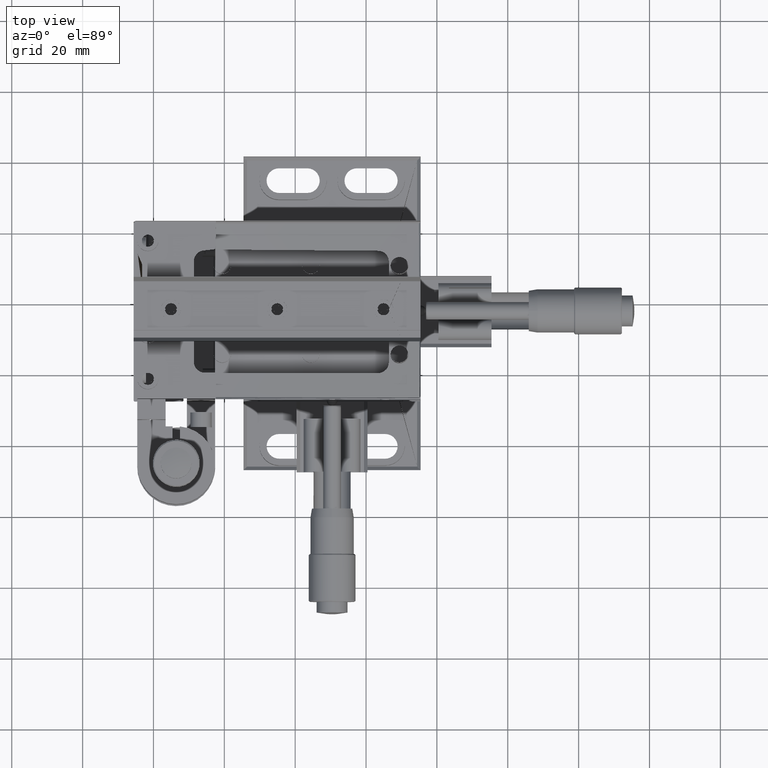
[diagram: clean part render]
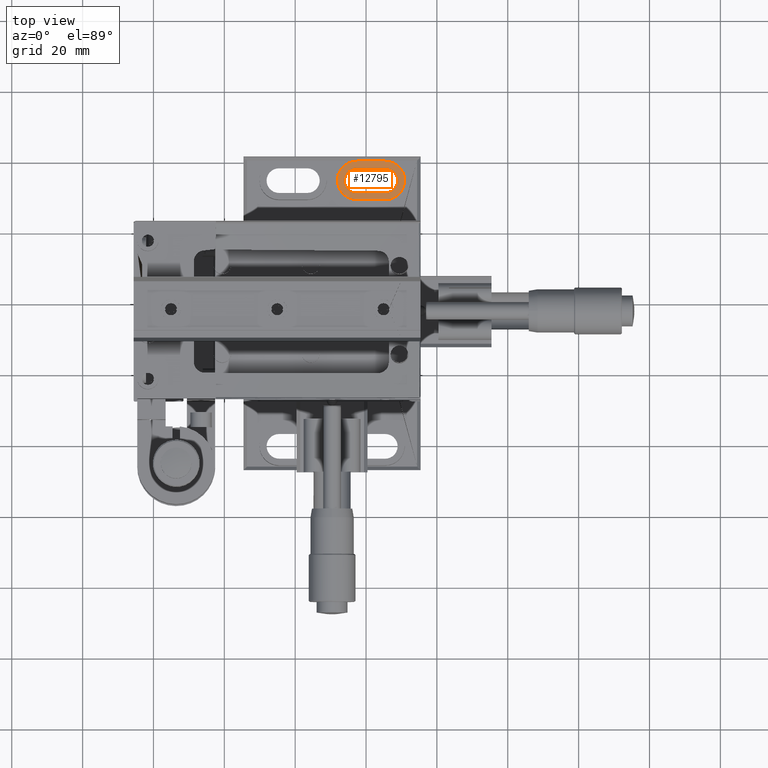
[diagram: same view with one face highlighted and labeled with its STEP entity id]
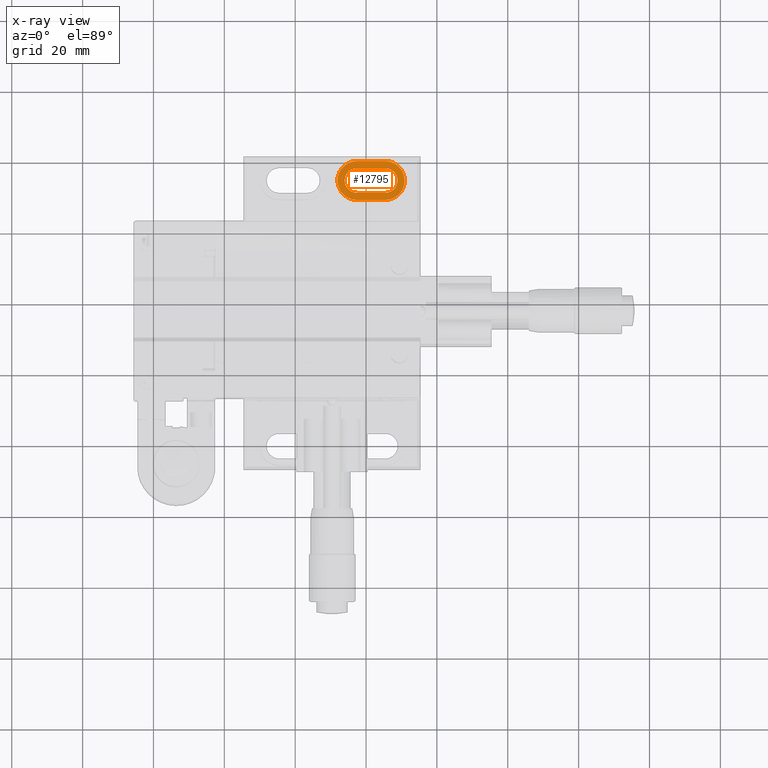
[diagram: x-ray of the same camera — body ghosted, the highlighted face saturated]
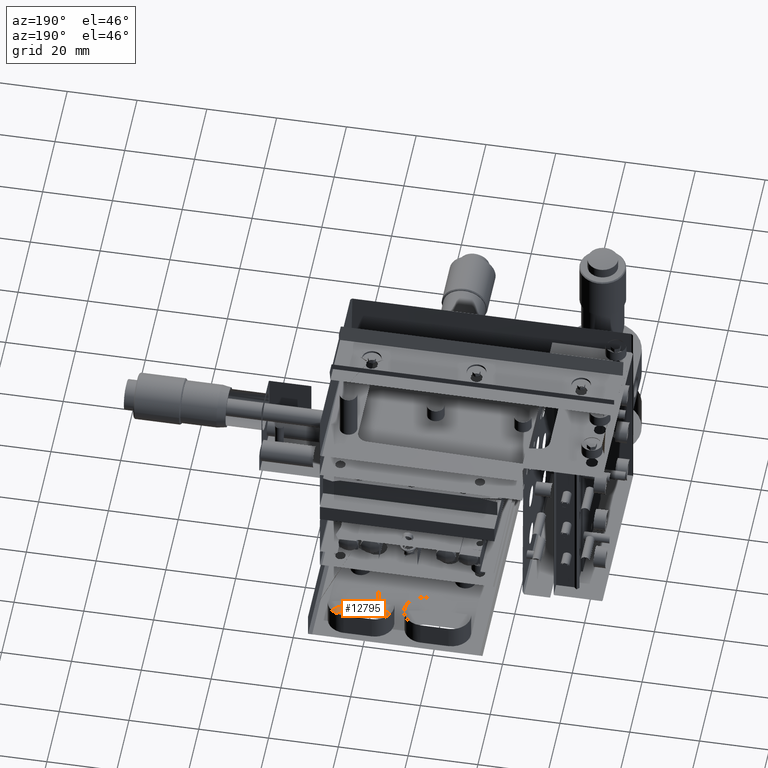
[diagram: same view with one face highlighted and labeled with its STEP entity id]
A machine part, top view. The second image highlights one B-rep face of the part: STEP entity #12795.
The next image is the same camera in x-ray: the body ghosted, the highlighted face saturated — about 0% of this face is hidden behind the body in this view.
A second angle (auxiliary view) of the same face is appended — the face is thin or edge-on in the first view.
In plain terms, the highlighted face is a freeform B-spline surface patch.
Its self-contained STEP definition (entity closure, byte-faithful):
#394 =( BOUNDED_CURVE ( )  B_SPLINE_CURVE ( 3, ( #31378, #25449, #39255, #29090 ),
 .UNSPECIFIED., .F., .F. ) 
 B_SPLINE_CURVE_WITH_KNOTS ( ( 4, 4 ),
 ( 0.000000000000000000, 1.000000000000000000 ),
 .UNSPECIFIED. ) 
 CURVE ( )  GEOMETRIC_REPRESENTATION_ITEM ( )  RATIONAL_B_SPLINE_CURVE ( ( 1.000000000000000000, 0.8047378541243648264, 0.8047378541243648264, 1.000000000000000000 ) ) 
 REPRESENTATION_ITEM ( '' )  );
#632 = EDGE_CURVE ( 'NONE', #13397, #16909, #33474, .T. ) ;
#874 = ORIENTED_EDGE ( 'NONE', *, *, #18282, .F. ) ;
#1044 = CARTESIAN_POINT ( 'NONE',  ( 25.41923232115950171, 40.50071742813409514, -20.42187213818440128 ) ) ;
#1271 = CARTESIAN_POINT ( 'NONE',  ( 15.27251899089824327, 32.19767391394924516, -20.42187213818439773 ) ) ;
#1931 = CARTESIAN_POINT ( 'NONE',  ( 17.41923232115949816, 31.50071742813410225, -20.42187213818440128 ) ) ;
#1973 = CARTESIAN_POINT ( 'NONE',  ( 28.91923232115950171, 35.00071742813409514, -20.42187213818440128 ) ) ;
#2419 = CARTESIAN_POINT ( 'NONE',  ( 28.83042510908934020, 34.09010724093332811, -20.42187213818440128 ) ) ;
#2458 = VERTEX_POINT ( 'NONE', #28920 ) ;
#3616 = EDGE_LOOP ( 'NONE', ( #18785, #43237, #42667, #13821, #5152 ) ) ;
#4663 = CARTESIAN_POINT ( 'NONE',  ( 14.36324950012286372, 33.23255452209824057, -20.42187213818439773 ) ) ;
#5102 = CARTESIAN_POINT ( 'NONE',  ( 16.50862213395950917, 31.58952464020426376, -20.42187213818440128 ) ) ;
#5152 = ORIENTED_EDGE ( 'NONE', *, *, #11940, .T. ) ;
#5705 = B_SPLINE_CURVE_WITH_KNOTS ( 'NONE', 1,
 ( #18524, #29198 ),
 .UNSPECIFIED., .F., .F.,
 ( 2, 2 ),
 ( 0.000000000000000000, 1.000000000000000000 ),
 .UNSPECIFIED. ) ;
#6486 = CARTESIAN_POINT ( 'NONE',  ( 27.56593627527434265, 32.19768329007392538, -20.42187213818440128 ) ) ;
#6932 = CARTESIAN_POINT ( 'NONE',  ( 26.32985344162930375, 31.58954352155122436, -20.42187213818439773 ) ) ;
#6945 = CARTESIAN_POINT ( 'NONE',  ( 30.91923232115949816, 35.00071742813409514, -20.42187213818440128 ) ) ;
#7350 = CARTESIAN_POINT ( 'NONE',  ( 25.41923232115950171, 29.50071742813409870, -20.42187213818440128 ) ) ;
#7787 =( BOUNDED_CURVE ( )  B_SPLINE_CURVE ( 3, ( #6945, #24619, #17349, #1044 ),
 .UNSPECIFIED., .F., .F. ) 
 B_SPLINE_CURVE_WITH_KNOTS ( ( 4, 4 ),
 ( 0.000000000000000000, 1.000000000000000000 ),
 .UNSPECIFIED. ) 
 CURVE ( )  GEOMETRIC_REPRESENTATION_ITEM ( )  RATIONAL_B_SPLINE_CURVE ( ( 1.000000000000000000, 0.8047378541243648264, 0.8047378541243648264, 1.000000000000000000 ) ) 
 REPRESENTATION_ITEM ( '' )  );
#7826 = CARTESIAN_POINT ( 'NONE',  ( 13.91923895110203979, 35.46481295194035255, -20.42187213818440128 ) ) ;
#8750 = CARTESIAN_POINT ( 'NONE',  ( 28.47521514226754391, 36.76888033407342249, -20.42187213818439773 ) ) ;
#8775 = B_SPLINE_CURVE_WITH_KNOTS ( 'NONE', 1,
 ( #13540, #14647 ),
 .UNSPECIFIED., .F., .F.,
 ( 2, 2 ),
 ( 0.000000000000000000, 1.000000000000000000 ),
 .UNSPECIFIED. ) ;
#9361 = EDGE_CURVE ( 'NONE', #39175, #26492, #7787, .T. ) ;
#9595 = CARTESIAN_POINT ( 'NONE',  ( 25.41923232115950171, 31.50071742813410225, -20.42187213818440128 ) ) ;
#10088 = CARTESIAN_POINT ( 'NONE',  ( 28.22227583535051565, 32.85400409788842779, -20.42187213818439773 ) ) ;
#11150 = CARTESIAN_POINT ( 'NONE',  ( 17.41923232115949816, 29.50071742813409870, -20.42187213818440128 ) ) ;
#11310 = CARTESIAN_POINT ( 'NONE',  ( 27.18740616051608683, 38.05668136778326982, -20.42187213818440128 ) ) ;
#11597 = CARTESIAN_POINT ( 'NONE',  ( 15.98170007804238324, 40.35843628470400546, -20.42187213818440128 ) ) ;
#11940 = EDGE_CURVE ( 'NONE', #42676, #13397, #8775, .T. ) ;
#12341 = CARTESIAN_POINT ( 'NONE',  ( 16.95508613838545031, 31.50071742813410935, -20.42187213818440128 ) ) ;
#12407 = CARTESIAN_POINT ( 'NONE',  ( 25.41923232115950171, 40.50071742813409514, -20.42187213818440128 ) ) ;
#12795 = ADVANCED_FACE ( 'NONE', ( #23135, #43985 ), #42407, .T. ) ;
#13014 = B_SPLINE_CURVE_WITH_KNOTS ( 'NONE', 3,
 ( #41837, #17806, #31655, #14393, #38869, #35264, #18024, #28486, #7826, #21663, #18248, #4663, #32309, #1271, #39760, #5102, #12341, #1931 ),
 .UNSPECIFIED., .F., .F.,
 ( 4, 2, 2, 2, 2, 2, 2, 2, 4 ),
 ( 0.000000000000000000, 0.1250000000000000000, 0.2500000000000000000, 0.3750000000000000000, 0.5000000000000000000, 0.6250000000000000000, 0.7500000000000000000, 0.8750000000000000000, 1.000000000000000000 ),
 .UNSPECIFIED. ) ;
#13397 = VERTEX_POINT ( 'NONE', #9595 ) ;
#13540 = CARTESIAN_POINT ( 'NONE',  ( 17.41923232115949816, 31.50071742813410225, -20.42187213818440128 ) ) ;
#13821 = ORIENTED_EDGE ( 'NONE', *, *, #36086, .T. ) ;
#14393 = CARTESIAN_POINT ( 'NONE',  ( 15.65106941518476802, 38.05670024924589967, -20.42187213818439773 ) ) ;
#14647 = CARTESIAN_POINT ( 'NONE',  ( 25.41923232115950171, 31.50071742813410225, -20.42187213818440128 ) ) ;
#14971 = CARTESIAN_POINT ( 'NONE',  ( 14.04081546262250768, 39.40048444762655322, -20.42187213818440128 ) ) ;
#15441 = EDGE_LOOP ( 'NONE', ( #32495, #34372, #29869, #27160, #874 ) ) ;
#16207 = CARTESIAN_POINT ( 'NONE',  ( 28.47519626080867283, 33.23254358877923664, -20.42187213818440128 ) ) ;
#16909 = VERTEX_POINT ( 'NONE', #1973 ) ;
#17349 = CARTESIAN_POINT ( 'NONE',  ( 28.64105772810739481, 40.50071742813410935, -20.42187213818443325 ) ) ;
#17580 = EDGE_CURVE ( 'NONE', #2458, #32990, #5705, .T. ) ;
#17727 = CARTESIAN_POINT ( 'NONE',  ( 11.91922575566239217, 35.72292105264443052, -20.42187213818440128 ) ) ;
#17806 = CARTESIAN_POINT ( 'NONE',  ( 16.95512079072968348, 38.50071742813410225, -20.42187213818440128 ) ) ;
#18024 = CARTESIAN_POINT ( 'NONE',  ( 14.36326175061541122, 36.76887525984668770, -20.42187213818440128 ) ) ;
#18113 = CARTESIAN_POINT ( 'NONE',  ( 28.83040622763046557, 35.91133854875040043, -20.42187213818439773 ) ) ;
#18248 = CARTESIAN_POINT ( 'NONE',  ( 14.00805841461712653, 34.09009630761435261, -20.42187213818440128 ) ) ;
#18282 = EDGE_CURVE ( 'NONE', #38885, #39175, #394, .T. ) ;
#18399 = CARTESIAN_POINT ( 'NONE',  ( 14.64724178348294181, 30.19574929556672416, -20.42187213818440483 ) ) ;
#18524 = CARTESIAN_POINT ( 'NONE',  ( 25.41923232115950171, 38.50071742813405251, -20.42187213818440128 ) ) ;
#18785 = ORIENTED_EDGE ( 'NONE', *, *, #632, .T. ) ;
#19078 = CARTESIAN_POINT ( 'NONE',  ( 31.03323232115950248, 29.50071742813409870, -20.42187213818440128 ) ) ;
#19415 = CARTESIAN_POINT ( 'NONE',  ( 25.88337850393261519, 38.50071742813410225, -20.42187213818440128 ) ) ;
#19717 = EDGE_CURVE ( 'NONE', #37433, #26492, #34190, .T. ) ;
#20460 = CARTESIAN_POINT ( 'NONE',  ( 30.91923232115949816, 35.00071742813409514, -20.42187213818440128 ) ) ;
#21150 = CARTESIAN_POINT ( 'NONE',  ( 12.06151346470966956, 33.56318518467537615, -20.42187213818440483 ) ) ;
#21260 = B_SPLINE_CURVE_WITH_KNOTS ( 'NONE', 1,
 ( #34038, #34941 ),
 .UNSPECIFIED., .F., .F.,
 ( 2, 2 ),
 ( -1.000000000000000000, 0.000000000000000000 ),
 .UNSPECIFIED. ) ;
#21663 = CARTESIAN_POINT ( 'NONE',  ( 13.91922569121696540, 34.53662190432784485, -20.42187213818439773 ) ) ;
#21813 = CARTESIAN_POINT ( 'NONE',  ( 14.04082474755682064, 30.60095969366945923, -20.42187213818440483 ) ) ;
#22018 = B_SPLINE_CURVE_WITH_KNOTS ( 'NONE', 3,
 ( #11150, #28634, #24994, #18399, #21813, #41986, #34968, #21150, #35633, #17727, #31583, #42647, #38798, #14971, #28849, #11597, #25435, #22030 ),
 .UNSPECIFIED., .F., .F.,
 ( 4, 2, 2, 2, 2, 2, 2, 2, 4 ),
 ( 0.000000000000000000, 0.1250000000000002776, 0.2500000000000002220, 0.3750000000000002220, 0.5000000000000002220, 0.6250000000000001110, 0.7500000000000001110, 0.8750000000000000000, 1.000000000000000000 ),
 .UNSPECIFIED. ) ;
#22030 = CARTESIAN_POINT ( 'NONE',  ( 17.41923232115949816, 40.50071742813409514, -20.42187213818440128 ) ) ;
#22034 = VERTEX_POINT ( 'NONE', #41585 ) ;
#22858 = EDGE_CURVE ( 'NONE', #16909, #2458, #26273, .T. ) ;
#23135 = FACE_BOUND ( 'NONE', #3616, .T. ) ;
#23253 = CARTESIAN_POINT ( 'NONE',  ( 28.91923232115950171, 35.00071742813409514, -20.42187213818440128 ) ) ;
#23262 = CARTESIAN_POINT ( 'NONE',  ( 17.41923232115949816, 38.50071742813405251, -20.42187213818440128 ) ) ;
#23364 = CARTESIAN_POINT ( 'NONE',  ( 31.03323232115950248, 40.50071742813409514, -20.42187213818440128 ) ) ;
#24619 = CARTESIAN_POINT ( 'NONE',  ( 30.91923232115949105, 38.22254283508211614, -20.42187213818443325 ) ) ;
#24994 = CARTESIAN_POINT ( 'NONE',  ( 15.98170510282008117, 29.64301070307733355, -20.42187213818440483 ) ) ;
#25435 = CARTESIAN_POINT ( 'NONE',  ( 16.69692837499855287, 40.50071742813410225, -20.42187213818440128 ) ) ;
#25449 = CARTESIAN_POINT ( 'NONE',  ( 28.64105772810739481, 29.50071742813411646, -20.42187213818443325 ) ) ;
#25566 = CARTESIAN_POINT ( 'NONE',  ( 25.41923232115950171, 40.50071742813409514, -20.42187213818440128 ) ) ;
#26273 = B_SPLINE_CURVE_WITH_KNOTS ( 'NONE', 3,
 ( #36593, #42370, #18113, #8750, #43437, #33012, #11310, #31956, #19415, #36819 ),
 .UNSPECIFIED., .F., .F.,
 ( 4, 2, 2, 2, 4 ),
 ( 0.000000000000000000, 0.2500000000000000000, 0.5000000000000000000, 0.7500000000000000000, 1.000000000000000000 ),
 .UNSPECIFIED. ) ;
#26492 = VERTEX_POINT ( 'NONE', #25566 ) ;
#27160 = ORIENTED_EDGE ( 'NONE', *, *, #9361, .F. ) ;
#28486 = CARTESIAN_POINT ( 'NONE',  ( 14.00804616412458969, 35.91134362297713523, -20.42187213818439773 ) ) ;
#28634 = CARTESIAN_POINT ( 'NONE',  ( 16.69699568819428848, 29.50071742813410935, -20.42187213818440483 ) ) ;
#28733 = CARTESIAN_POINT ( 'NONE',  ( 17.41923232115949816, 31.50071742813410225, -20.42187213818440128 ) ) ;
#28849 = CARTESIAN_POINT ( 'NONE',  ( 14.64724680826062198, 39.80567342918836005, -20.42187213818440483 ) ) ;
#28920 = CARTESIAN_POINT ( 'NONE',  ( 25.41923232115950171, 38.50071742813405251, -20.42187213818440128 ) ) ;
#29090 = CARTESIAN_POINT ( 'NONE',  ( 30.91923232115949816, 35.00071742813409514, -20.42187213818440128 ) ) ;
#29198 = CARTESIAN_POINT ( 'NONE',  ( 17.41923232115949816, 38.50071742813405251, -20.42187213818440128 ) ) ;
#29656 = CARTESIAN_POINT ( 'NONE',  ( 17.41923232115949816, 40.50071742813409514, -20.42187213818440128 ) ) ;
#29869 = ORIENTED_EDGE ( 'NONE', *, *, #19717, .T. ) ;
#30233 = EDGE_CURVE ( 'NONE', #22034, #37433, #22018, .T. ) ;
#31378 = CARTESIAN_POINT ( 'NONE',  ( 25.41923232115950171, 29.50071742813409870, -20.42187213818440128 ) ) ;
#31583 = CARTESIAN_POINT ( 'NONE',  ( 12.06152559612989883, 36.43824464652837491, -20.42187213818440128 ) ) ;
#31655 = CARTESIAN_POINT ( 'NONE',  ( 16.50861120057859566, 38.41189133460129312, -20.42187213818439773 ) ) ;
#31956 = CARTESIAN_POINT ( 'NONE',  ( 26.32984250835855633, 38.41191021606393718, -20.42187213818440128 ) ) ;
#32309 = CARTESIAN_POINT ( 'NONE',  ( 14.61619818311492836, 32.85401347401313643, -20.42187213818440128 ) ) ;
#32495 = ORIENTED_EDGE ( 'NONE', *, *, #40850, .F. ) ;
#32990 = VERTEX_POINT ( 'NONE', #23262 ) ;
#33012 = CARTESIAN_POINT ( 'NONE',  ( 27.56594565146298592, 37.80376094230186368, -20.42187213818439773 ) ) ;
#33474 = B_SPLINE_CURVE_WITH_KNOTS ( 'NONE', 3,
 ( #37719, #43882, #6932, #40455, #6486, #10088, #16207, #2419, #34351, #23253 ),
 .UNSPECIFIED., .F., .F.,
 ( 4, 2, 2, 2, 4 ),
 ( 0.000000000000000000, 0.2500000000000000000, 0.5000000000000000000, 0.7500000000000000000, 1.000000000000000000 ),
 .UNSPECIFIED. ) ;
#34038 = CARTESIAN_POINT ( 'NONE',  ( 17.41923232115949816, 29.50071742813409870, -20.42187213818440128 ) ) ;
#34190 = B_SPLINE_CURVE_WITH_KNOTS ( 'NONE', 1,
 ( #29656, #12407 ),
 .UNSPECIFIED., .F., .F.,
 ( 2, 2 ),
 ( 0.000000000000000000, 1.000000000000000000 ),
 .UNSPECIFIED. ) ;
#34351 = CARTESIAN_POINT ( 'NONE',  ( 28.91923232115950881, 34.53657124535928347, -20.42187213818440128 ) ) ;
#34372 = ORIENTED_EDGE ( 'NONE', *, *, #30233, .T. ) ;
#34941 = CARTESIAN_POINT ( 'NONE',  ( 25.41923232115950171, 29.50071742813409870, -20.42187213818440128 ) ) ;
#34968 = CARTESIAN_POINT ( 'NONE',  ( 12.61427631998516929, 32.22873191557681594, -20.42187213818440128 ) ) ;
#35264 = CARTESIAN_POINT ( 'NONE',  ( 14.61618880688933508, 37.14743075829601793, -20.42187213818439773 ) ) ;
#35633 = CARTESIAN_POINT ( 'NONE',  ( 11.91923888665660058, 34.27851380362378109, -20.42187213818439773 ) ) ;
#36086 = EDGE_CURVE ( 'NONE', #32990, #42676, #13014, .T. ) ;
#36593 = CARTESIAN_POINT ( 'NONE',  ( 28.91923232115950171, 35.00071742813409514, -20.42187213818440128 ) ) ;
#36819 = CARTESIAN_POINT ( 'NONE',  ( 25.41923232115950171, 38.50071742813405251, -20.42187213818440128 ) ) ;
#37148 = CARTESIAN_POINT ( 'NONE',  ( 11.80523232115949916, 29.50071742813409870, -20.42187213818440128 ) ) ;
#37433 = VERTEX_POINT ( 'NONE', #38993 ) ;
#37719 = CARTESIAN_POINT ( 'NONE',  ( 25.41923232115950171, 31.50071742813410225, -20.42187213818440128 ) ) ;
#38798 = CARTESIAN_POINT ( 'NONE',  ( 13.01947458664447055, 38.37912500169367291, -20.42187213818440128 ) ) ;
#38869 = CARTESIAN_POINT ( 'NONE',  ( 15.27252836712383299, 37.80375156627802369, -20.42187213818440128 ) ) ;
#38885 = VERTEX_POINT ( 'NONE', #7350 ) ;
#38993 = CARTESIAN_POINT ( 'NONE',  ( 17.41923232115949816, 40.50071742813409514, -20.42187213818440128 ) ) ;
#39175 = VERTEX_POINT ( 'NONE', #20460 ) ;
#39255 = CARTESIAN_POINT ( 'NONE',  ( 30.91923232115949105, 31.77889202118609902, -20.42187213818443325 ) ) ;
#39760 = CARTESIAN_POINT ( 'NONE',  ( 15.65105848180386694, 31.94475348848493113, -20.42187213818440128 ) ) ;
#40455 = CARTESIAN_POINT ( 'NONE',  ( 27.18739522724533586, 31.94473460713798119, -20.42187213818439773 ) ) ;
#40850 = EDGE_CURVE ( 'NONE', #22034, #38885, #21260, .T. ) ;
#41585 = CARTESIAN_POINT ( 'NONE',  ( 17.41923232115949816, 29.50071742813409870, -20.42187213818440128 ) ) ;
#41837 = CARTESIAN_POINT ( 'NONE',  ( 17.41923232115949816, 38.50071742813405251, -20.42187213818440128 ) ) ;
#41986 = CARTESIAN_POINT ( 'NONE',  ( 13.01946530171015937, 31.62230056954671298, -20.42187213818440839 ) ) ;
#42370 = CARTESIAN_POINT ( 'NONE',  ( 28.91923232115950881, 35.46482895860842888, -20.42187213818440128 ) ) ;
#42407 = B_SPLINE_SURFACE_WITH_KNOTS ( 'NONE', 1, 1, ( 
 ( #43545, #37148 ),
 ( #23364, #19078 ) ),
 .UNSPECIFIED., .F., .F., .F.,
 ( 2, 2 ),
 ( 2, 2 ),
 ( 0.000000000000000000, 1.000000000000000000 ),
 ( 0.000000000000000000, 1.000000000000000000 ),
 .UNSPECIFIED. ) ;
#42647 = CARTESIAN_POINT ( 'NONE',  ( 12.61426418856494180, 37.77270796575583489, -20.42187213818440128 ) ) ;
#42667 = ORIENTED_EDGE ( 'NONE', *, *, #17580, .T. ) ;
#42676 = VERTEX_POINT ( 'NONE', #28733 ) ;
#43237 = ORIENTED_EDGE ( 'NONE', *, *, #22858, .T. ) ;
#43437 = CARTESIAN_POINT ( 'NONE',  ( 28.22226645916187238, 37.14742138227217794, -20.42187213818440128 ) ) ;
#43545 = CARTESIAN_POINT ( 'NONE',  ( 11.80523232115949916, 40.50071742813409514, -20.42187213818440128 ) ) ;
#43882 = CARTESIAN_POINT ( 'NONE',  ( 25.88334385175755870, 31.50071742813410935, -20.42187213818440128 ) ) ;
#43985 = FACE_OUTER_BOUND ( 'NONE', #15441, .T. ) ;